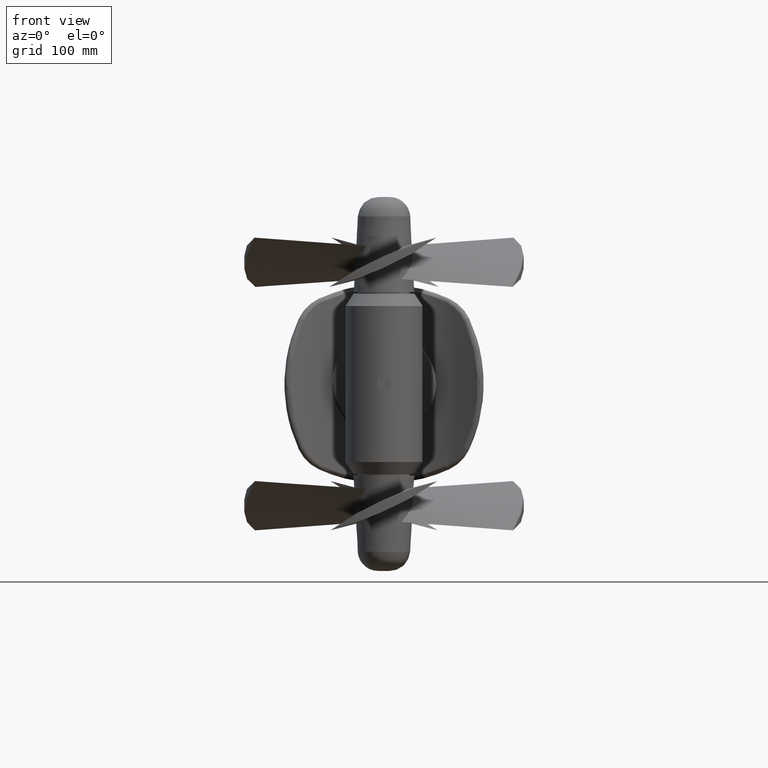
[diagram: clean part render]
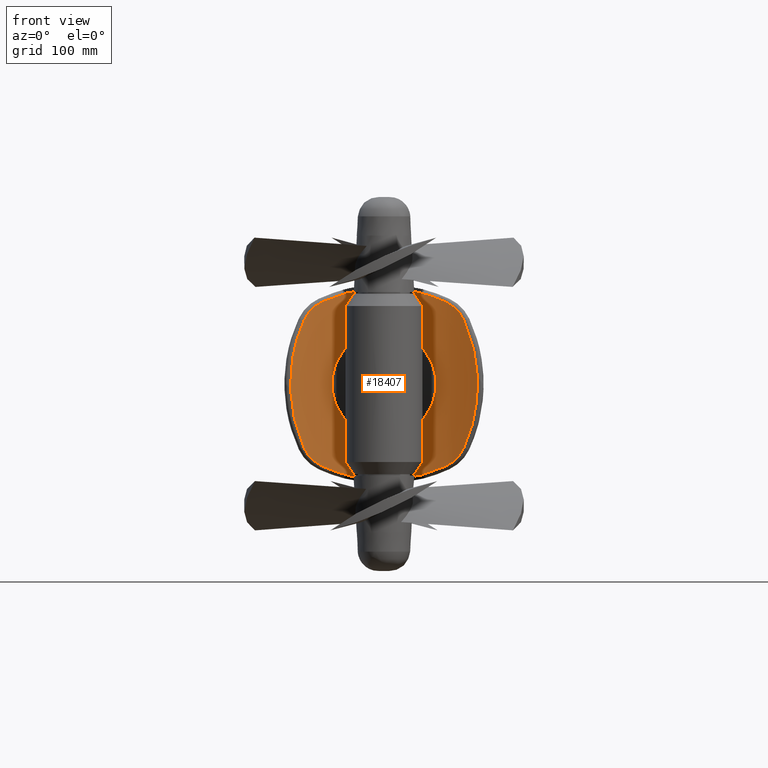
[diagram: same view with one face highlighted and labeled with its STEP entity id]
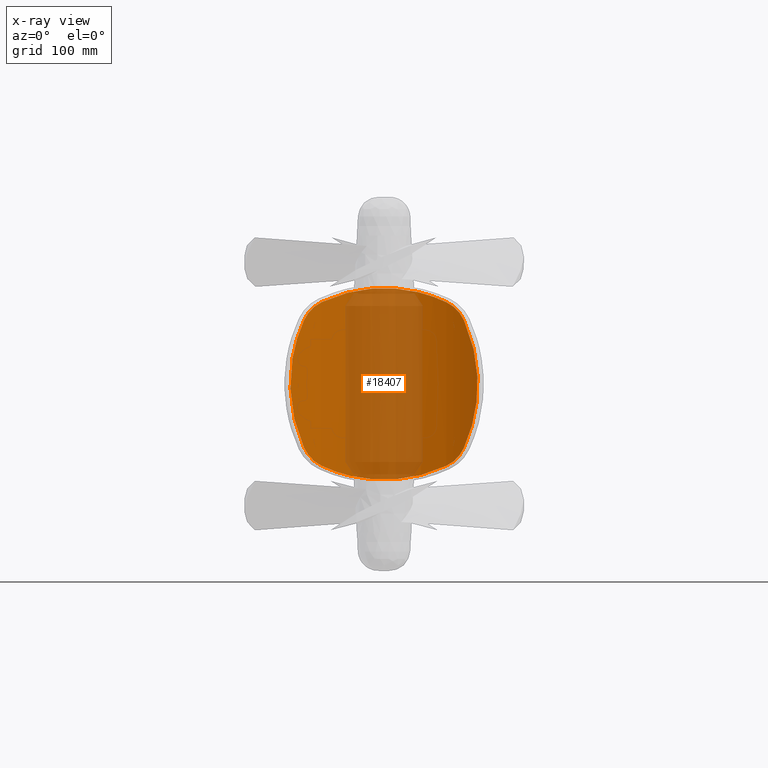
[diagram: x-ray of the same camera — body ghosted, the highlighted face saturated]
A machine part, front view. The second image highlights one B-rep face of the part: STEP entity #18407.
The next image is the same camera in x-ray: the body ghosted, the highlighted face saturated — about 47% of this face is hidden behind the body in this view.
In plain terms, the highlighted cylindrical surface (partial cylindrical patch) has radius 206.5 mm, axis along (0, -0, 1).
Its self-contained STEP definition (entity closure, byte-faithful):
#2166=B_SPLINE_CURVE_WITH_KNOTS('',3,(#30088,#30089,#30090,#30091,#30092,
#30093,#30094,#30095,#30096,#30097,#30098,#30099,#30100,#30101,#30102,#30103,
#30104,#30105,#30106,#30107,#30108,#30109,#30110,#30111,#30112,#30113,#30114,
#30115,#30116,#30117,#30118,#30119,#30120,#30121,#30122,#30123),
 .UNSPECIFIED.,.F.,.F.,(4,2,2,2,2,2,2,2,2,2,2,2,2,2,2,2,2,4),(0.,0.603662661309782,
1.0609597264317,1.21464831998809,1.44587788713886,1.52315733123441,1.67807167282245,
1.75570857815073,1.91140257875688,1.98932729115595,2.14539326794226,2.22353477407441,
2.45786501455923,2.61396319356764,2.92610365629908,3.08225372688954,3.39499632651623,
3.70870922291346),.UNSPECIFIED.);
#2167=B_SPLINE_CURVE_WITH_KNOTS('',3,(#30125,#30126,#30127,#30128,#30129,
#30130,#30131,#30132,#30133,#30134),.UNSPECIFIED.,.F.,.F.,(4,1,1,1,1,1,
1,4),(-17.9370870762451,-15.3746460653529,-12.8122050544608,-10.2497640435687,
-7.68732303267659,-5.12488202178447,-2.56244101089235,-2.30518704763948E-13),
 .UNSPECIFIED.);
#2168=B_SPLINE_CURVE_WITH_KNOTS('',3,(#30136,#30137,#30138,#30139,#30140,
#30141,#30142,#30143,#30144,#30145,#30146,#30147,#30148,#30149,#30150,#30151,
#30152,#30153,#30154,#30155,#30156,#30157,#30158,#30159,#30160,#30161,#30162,
#30163,#30164,#30165,#30166,#30167,#30168,#30169,#30170,#30171),
 .UNSPECIFIED.,.F.,.F.,(4,2,2,2,2,2,2,2,2,2,2,2,2,2,2,2,2,4),(0.,0.625512377243922,
1.09192394194947,1.24718971031609,1.48009173449899,1.55775075006837,1.71314963066655,
1.79088769017084,1.94648940609271,2.02421512577038,2.17940439640732,2.2566886906031,
2.48735715680967,2.64026065313907,2.94438039712936,3.09576986442901,3.39761896700775,
3.6987234704423),.UNSPECIFIED.);
#2169=B_SPLINE_CURVE_WITH_KNOTS('',3,(#30173,#30174,#30175,#30176,#30177,
#30178,#30179,#30180,#30181,#30182,#30183,#30184),.UNSPECIFIED.,.F.,.F.,
(4,1,1,1,1,1,1,1,1,4),(-18.1812499096784,-17.2072543788028,-16.8825892018442,
-15.5839284940101,-11.6879463705075,-10.3892856626734,-5.19464283133669,
-4.5453124774196,-2.59732141566835,-6.20471027840034E-15),.UNSPECIFIED.);
#2170=B_SPLINE_CURVE_WITH_KNOTS('',3,(#30186,#30187,#30188,#30189,#30190,
#30191,#30192,#30193,#30194,#30195,#30196,#30197,#30198,#30199,#30200,#30201,
#30202,#30203,#30204,#30205,#30206,#30207,#30208,#30209,#30210,#30211,#30212,
#30213,#30214,#30215,#30216,#30217,#30218,#30219,#30220,#30221),
 .UNSPECIFIED.,.F.,.F.,(4,2,2,2,2,2,2,2,2,2,2,2,2,2,2,2,2,4),(1.34500587213953E-11,
0.603662661309997,1.06095972643197,1.21464831998835,1.44587788713913,1.5231573312347,
1.67807167282275,1.755708578151,1.91140257875723,1.98932729115628,2.14539326794248,
2.22353477407456,2.45786501455948,2.61396319356785,2.92610365629928,3.08225372688975,
3.39499632651639,3.70870922291365),.UNSPECIFIED.);
#2171=B_SPLINE_CURVE_WITH_KNOTS('',3,(#30223,#30224,#30225,#30226,#30227,
#30228,#30229,#30230,#30231,#30232),.UNSPECIFIED.,.F.,.F.,(4,1,1,1,1,1,
1,4),(-17.9370870762447,-15.3746460653526,-12.8122050544605,-10.2497640435684,
-7.68732303267628,-3.84366151633814,-2.56244101089209,0.),.UNSPECIFIED.);
#2172=B_SPLINE_CURVE_WITH_KNOTS('',3,(#30234,#30235,#30236,#30237,#30238,
#30239,#30240,#30241,#30242,#30243,#30244,#30245,#30246,#30247,#30248,#30249,
#30250,#30251,#30252,#30253,#30254,#30255,#30256,#30257,#30258,#30259,#30260,
#30261,#30262,#30263,#30264,#30265,#30266,#30267,#30268,#30269),
 .UNSPECIFIED.,.F.,.F.,(4,2,2,2,2,2,2,2,2,2,2,2,2,2,2,2,2,4),(0.,0.626455025232919,
1.09474594767155,1.25084417529,1.4851744000125,1.56331590554252,1.71938187780246,
1.79730658668344,1.95300058897335,2.03063749949365,2.18555184900024,2.26283129467349,
2.49406087154938,2.64774941474529,2.95320140760495,3.10504611328769,3.4074459307009,
3.70870921616505),.UNSPECIFIED.);
#2173=B_SPLINE_CURVE_WITH_KNOTS('',3,(#30270,#30271,#30272,#30273,#30274,
#30275,#30276,#30277,#30278,#30279),.UNSPECIFIED.,.F.,.F.,(4,1,1,1,1,1,
1,4),(-18.1812499096783,-15.58392849401,-12.9866070783417,-11.6879463705075,
-7.791964247005,-5.19464283133667,-2.59732141566833,0.),.UNSPECIFIED.);
#3198=CYLINDRICAL_SURFACE('',#19957,206.5);
#3826=FACE_OUTER_BOUND('',#5315,.T.);
#5315=EDGE_LOOP('',(#12845,#12846,#12847,#12848,#12849,#12850,#12851,#12852));
#7780=VERTEX_POINT('',#30086);
#7781=VERTEX_POINT('',#30087);
#7782=VERTEX_POINT('',#30124);
#7783=VERTEX_POINT('',#30135);
#7784=VERTEX_POINT('',#30172);
#7785=VERTEX_POINT('',#30185);
#7786=VERTEX_POINT('',#30222);
#7787=VERTEX_POINT('',#30233);
#9575=EDGE_CURVE('',#7780,#7781,#2166,.T.);
#9576=EDGE_CURVE('',#7782,#7780,#2167,.T.);
#9577=EDGE_CURVE('',#7783,#7782,#2168,.T.);
#9578=EDGE_CURVE('',#7784,#7783,#2169,.T.);
#9579=EDGE_CURVE('',#7785,#7784,#2170,.T.);
#9580=EDGE_CURVE('',#7786,#7785,#2171,.T.);
#9581=EDGE_CURVE('',#7787,#7786,#2172,.T.);
#9582=EDGE_CURVE('',#7781,#7787,#2173,.T.);
#12845=ORIENTED_EDGE('',*,*,#9575,.F.);
#12846=ORIENTED_EDGE('',*,*,#9576,.F.);
#12847=ORIENTED_EDGE('',*,*,#9577,.F.);
#12848=ORIENTED_EDGE('',*,*,#9578,.F.);
#12849=ORIENTED_EDGE('',*,*,#9579,.F.);
#12850=ORIENTED_EDGE('',*,*,#9580,.F.);
#12851=ORIENTED_EDGE('',*,*,#9581,.F.);
#12852=ORIENTED_EDGE('',*,*,#9582,.F.);
#18407=ADVANCED_FACE('',(#3826),#3198,.F.);
#19957=AXIS2_PLACEMENT_3D('',#30085,#22713,#22714);
#22713=DIRECTION('center_axis',(1.66533453693773E-16,-4.8305084843109E-16,
1.));
#22714=DIRECTION('ref_axis',(-1.,5.02815290480203E-16,1.66533453693774E-16));
#30085=CARTESIAN_POINT('Origin',(3.89657678097504,-100.293859772514,-3.22507180430981E-8));
#30086=CARTESIAN_POINT('',(111.386200958436,76.0246891501344,-85.9138809229468));
#30087=CARTESIAN_POINT('',(87.7793966576883,88.4014568877861,-110.092278548157));
#30088=CARTESIAN_POINT('Ctrl Pts',(111.386200958436,76.0246891501343,-85.9138809229468));
#30089=CARTESIAN_POINT('Ctrl Pts',(110.587158351909,76.511811974149,-87.6831473809471));
#30090=CARTESIAN_POINT('Ctrl Pts',(109.689143680183,77.0518206646535,-89.3970158976028));
#30091=CARTESIAN_POINT('Ctrl Pts',(107.957317982095,78.0719538339665,-92.2859224108155));
#30092=CARTESIAN_POINT('Ctrl Pts',(107.16082606315,78.5347784279477,-93.4909261493629));
#30093=CARTESIAN_POINT('Ctrl Pts',(106.03828782707,79.1759888706923,-95.0397170507697));
#30094=CARTESIAN_POINT('Ctrl Pts',(105.750972679265,79.339224756922,-95.4242028825003));
#30095=CARTESIAN_POINT('Ctrl Pts',(105.018005410177,79.7532521769477,-96.3758887419269));
#30096=CARTESIAN_POINT('Ctrl Pts',(104.565996846357,80.0064411093024,-96.9368578016042));
#30097=CARTESIAN_POINT('Ctrl Pts',(103.948068099858,80.349381051107,-97.6703473129328));
#30098=CARTESIAN_POINT('Ctrl Pts',(103.792041040818,80.4357130768524,-97.8528250896674));
#30099=CARTESIAN_POINT('Ctrl Pts',(103.319581863818,80.6963214236875,-98.397267308155));
#30100=CARTESIAN_POINT('Ctrl Pts',(102.999475481203,80.8718165941255,-98.7553814497341));
#30101=CARTESIAN_POINT('Ctrl Pts',(102.511906179193,81.1373976890802,-99.2850455789846));
#30102=CARTESIAN_POINT('Ctrl Pts',(102.347954072329,81.2264189085042,-99.4605474130069));
#30103=CARTESIAN_POINT('Ctrl Pts',(101.851741198643,81.4949669874895,-99.9839516035561));
#30104=CARTESIAN_POINT('Ctrl Pts',(101.516002871459,81.6754958444355,-100.327794246275));
#30105=CARTESIAN_POINT('Ctrl Pts',(101.005601375713,81.9480799867194,-100.835396310501));
#30106=CARTESIAN_POINT('Ctrl Pts',(100.834245961143,82.039286990864,-101.003314622057));
#30107=CARTESIAN_POINT('Ctrl Pts',(100.316462737861,82.313939732382,-101.503308060374));
#30108=CARTESIAN_POINT('Ctrl Pts',(99.9667962554596,82.498159684916,-101.83113492263));
#30109=CARTESIAN_POINT('Ctrl Pts',(99.4358748137952,82.7758878755595,-102.314441836663));
#30110=CARTESIAN_POINT('Ctrl Pts',(99.257753556706,82.8687367173285,-102.47420331544));
#30111=CARTESIAN_POINT('Ctrl Pts',(98.5411122808571,83.2409563390298,-103.107529107303));
#30112=CARTESIAN_POINT('Ctrl Pts',(97.9933564363986,83.5224536940219,-103.5704688656));
#30113=CARTESIAN_POINT('Ctrl Pts',(97.0645611691168,83.9943661277152,-104.320868742849));
#30114=CARTESIAN_POINT('Ctrl Pts',(96.6889066869678,84.1838186633315,-104.615322714014));
#30115=CARTESIAN_POINT('Ctrl Pts',(95.5497102165551,84.7539030064011,-105.481449394976));
#30116=CARTESIAN_POINT('Ctrl Pts',(94.7737916037549,85.1363279286577,-106.035992842631));
#30117=CARTESIAN_POINT('Ctrl Pts',(93.5873087577717,85.7115592656925,-106.832067856417));
#30118=CARTESIAN_POINT('Ctrl Pts',(93.1879442921031,85.903618474172,-107.09153320696));
#30119=CARTESIAN_POINT('Ctrl Pts',(91.9781209193179,86.4805793028193,-107.852327792887));
#30120=CARTESIAN_POINT('Ctrl Pts',(91.1570281115932,86.8657139944917,-108.335255926262));
#30121=CARTESIAN_POINT('Ctrl Pts',(89.4873765762804,87.6351499207562,-109.251749618496));
#30122=CARTESIAN_POINT('Ctrl Pts',(88.6387434141749,88.019441952483,-109.685155427561));
#30123=CARTESIAN_POINT('Ctrl Pts',(87.7793966576886,88.401456887786,-110.092278548157));
#30124=CARTESIAN_POINT('',(111.386200958362,76.0246891501789,85.9138808586075));
#30125=CARTESIAN_POINT('Ctrl Pts',(111.386200958363,76.0246891501788,85.9138808586075));
#30126=CARTESIAN_POINT('Ctrl Pts',(114.77799520976,73.9569390944003,78.403658309263));
#30127=CARTESIAN_POINT('Ctrl Pts',(120.705378133443,70.075177458581,62.89504843149));
#30128=CARTESIAN_POINT('Ctrl Pts',(126.83693906534,65.6529445309429,38.3234726844748));
#30129=CARTESIAN_POINT('Ctrl Pts',(129.975019534756,63.2510540826342,12.9084152806044));
#30130=CARTESIAN_POINT('Ctrl Pts',(129.979401965624,63.2468922180311,-12.8400873707023));
#30131=CARTESIAN_POINT('Ctrl Pts',(126.849144963256,65.6440424036191,-38.2552178725682));
#30132=CARTESIAN_POINT('Ctrl Pts',(120.733860675096,70.055675248336,-62.8083131775623));
#30133=CARTESIAN_POINT('Ctrl Pts',(114.777995209827,73.9569390943571,-78.4036583735969));
#30134=CARTESIAN_POINT('Ctrl Pts',(111.386200958436,76.0246891501338,-85.9138809229449));
#30135=CARTESIAN_POINT('',(87.7793966576888,88.4014568877858,110.092278483656));
#30136=CARTESIAN_POINT('Ctrl Pts',(87.7793966576887,88.4014568877858,110.092278483656));
#30137=CARTESIAN_POINT('Ctrl Pts',(89.4928487940217,87.6397570244122,109.280515390968));
#30138=CARTESIAN_POINT('Ctrl Pts',(91.1663001409306,86.8677457152837,108.362855205633));
#30139=CARTESIAN_POINT('Ctrl Pts',(93.9920631256863,85.5201356823764,106.585865648897));
#30140=CARTESIAN_POINT('Ctrl Pts',(95.1686584291631,84.9445955787257,105.771169872272));
#30141=CARTESIAN_POINT('Ctrl Pts',(96.6887836344474,84.1838800557153,104.615416061525));
#30142=CARTESIAN_POINT('Ctrl Pts',(97.0644422132931,83.9944270928563,104.320966071886));
#30143=CARTESIAN_POINT('Ctrl Pts',(97.9931042933917,83.5225820237178,103.570673129723));
#30144=CARTESIAN_POINT('Ctrl Pts',(98.5408609634378,83.2410870973158,103.107751743503));
#30145=CARTESIAN_POINT('Ctrl Pts',(99.2578278857499,82.8686982734931,102.474138088624));
#30146=CARTESIAN_POINT('Ctrl Pts',(99.4359932411595,82.775826118221,102.314334672293));
#30147=CARTESIAN_POINT('Ctrl Pts',(99.9672456249531,82.4979247186128,101.830726018788));
#30148=CARTESIAN_POINT('Ctrl Pts',(100.316900280957,82.3137077509161,101.502885892456));
#30149=CARTESIAN_POINT('Ctrl Pts',(100.834351090382,82.0392313209335,101.003213344926));
#30150=CARTESIAN_POINT('Ctrl Pts',(101.005704465653,81.9480250216875,100.835294011965));
#30151=CARTESIAN_POINT('Ctrl Pts',(101.516406890261,81.6752801409597,100.327392606457));
#30152=CARTESIAN_POINT('Ctrl Pts',(101.852127213177,81.494758110778,99.9835444451778));
#30153=CARTESIAN_POINT('Ctrl Pts',(102.348043414152,81.2263705872134,99.4604531174035));
#30154=CARTESIAN_POINT('Ctrl Pts',(102.512000714909,81.1373462460237,99.2849430912719));
#30155=CARTESIAN_POINT('Ctrl Pts',(102.999469927651,80.8718194886586,98.7553859346407));
#30156=CARTESIAN_POINT('Ctrl Pts',(103.319219955663,80.696520781399,98.3976815591764));
#30157=CARTESIAN_POINT('Ctrl Pts',(103.791941881683,80.4357678532757,97.8529400238868));
#30158=CARTESIAN_POINT('Ctrl Pts',(103.947963695151,80.3494389500487,97.6704707738028));
#30159=CARTESIAN_POINT('Ctrl Pts',(104.565141936139,80.0069156804769,96.9378733580011));
#30160=CARTESIAN_POINT('Ctrl Pts',(105.017238183433,79.7536854203699,96.3768831492089));
#30161=CARTESIAN_POINT('Ctrl Pts',(105.750675693477,79.3393924849725,95.4245893371336));
#30162=CARTESIAN_POINT('Ctrl Pts',(106.038198948949,79.1760397683521,95.0398421721376));
#30163=CARTESIAN_POINT('Ctrl Pts',(106.882411812313,78.6938115036288,93.8750473863345));
#30164=CARTESIAN_POINT('Ctrl Pts',(107.424069786295,78.380901979414,93.0803514155921));
#30165=CARTESIAN_POINT('Ctrl Pts',(108.202655525892,77.9267385912033,91.863058870645));
#30166=CARTESIAN_POINT('Ctrl Pts',(108.456012013432,77.7781964768498,91.4540255996528));
#30167=CARTESIAN_POINT('Ctrl Pts',(109.197749191101,77.3412769731271,90.216697123226));
#30168=CARTESIAN_POINT('Ctrl Pts',(109.669439392199,77.0606567053356,89.3757346865007));
#30169=CARTESIAN_POINT('Ctrl Pts',(110.564328282204,76.523877779076,87.6655371059273));
#30170=CARTESIAN_POINT('Ctrl Pts',(110.987641725417,76.2676640522724,86.7963838398157));
#30171=CARTESIAN_POINT('Ctrl Pts',(111.386200958383,76.0246891501664,85.9138808585621));
#30172=CARTESIAN_POINT('',(-79.986243095738,88.4014568877861,110.092278483656));
#30173=CARTESIAN_POINT('Ctrl Pts',(-79.986243095738,88.4014568877861,110.092278483656));
#30174=CARTESIAN_POINT('Ctrl Pts',(-77.318198810969,89.587512175874,111.356288043134));
#30175=CARTESIAN_POINT('Ctrl Pts',(-73.6972028271419,91.1074195865432,112.97475298564));
#30176=CARTESIAN_POINT('Ctrl Pts',(-66.2936297264562,93.9627032869051,116.012687883021));
#30177=CARTESIAN_POINT('Ctrl Pts',(-50.1892888159691,99.535669573419,121.934727831182));
#30178=CARTESIAN_POINT('Ctrl Pts',(-29.869852267704,103.988025573172,126.651776639774));
#30179=CARTESIAN_POINT('Ctrl Pts',(3.73509884365397,107.122897261839,129.970227698052));
#30180=CARTESIAN_POINT('Ctrl Pts',(27.2579497152075,105.660989718689,128.424286271407));
#30181=CARTESIAN_POINT('Ctrl Pts',(51.6504336306232,100.743645097957,123.213056054517));
#30182=CARTESIAN_POINT('Ctrl Pts',(67.564019184617,96.5414415536908,118.754954309025));
#30183=CARTESIAN_POINT('Ctrl Pts',(80.6646118983047,91.5642709893536,113.462970642263));
#30184=CARTESIAN_POINT('Ctrl Pts',(87.7793966576888,88.4014568877858,110.092278483656));
#30185=CARTESIAN_POINT('',(-103.593047396412,76.0246891501789,85.9138808586075));
#30186=CARTESIAN_POINT('Ctrl Pts',(-103.593047396433,76.0246891501665,85.9138808585621));
#30187=CARTESIAN_POINT('Ctrl Pts',(-102.79400478992,76.5118119741721,87.6831473165187));
#30188=CARTESIAN_POINT('Ctrl Pts',(-101.895990338582,77.0518205379161,89.3970158725891));
#30189=CARTESIAN_POINT('Ctrl Pts',(-100.164164534608,78.0719537725929,92.2859223170001));
#30190=CARTESIAN_POINT('Ctrl Pts',(-99.3676725917167,78.534778379287,93.490926074851));
#30191=CARTESIAN_POINT('Ctrl Pts',(-98.24513429595,79.1759888525509,95.0397169863269));
#30192=CARTESIAN_POINT('Ctrl Pts',(-97.9578191493984,79.3392247382044,95.424202817363));
#30193=CARTESIAN_POINT('Ctrl Pts',(-97.2248518653998,79.7532521663283,96.3758886836322));
#30194=CARTESIAN_POINT('Ctrl Pts',(-96.7728432913099,80.0064411043257,96.9368577447883));
#30195=CARTESIAN_POINT('Ctrl Pts',(-96.1549145392352,80.3493810491955,97.6703472585024));
#30196=CARTESIAN_POINT('Ctrl Pts',(-95.9988874800412,80.4357130750314,97.8528250351366));
#30197=CARTESIAN_POINT('Ctrl Pts',(-95.5264283012178,80.6963214229108,98.3972672539078));
#30198=CARTESIAN_POINT('Ctrl Pts',(-95.2063219163981,80.8718165946484,98.75538139533));
#30199=CARTESIAN_POINT('Ctrl Pts',(-94.7187526134251,81.1373976901823,99.2850455243632));
#30200=CARTESIAN_POINT('Ctrl Pts',(-94.5548005063809,81.2264189097196,99.4605473583463));
#30201=CARTESIAN_POINT('Ctrl Pts',(-94.0585876319209,81.4949669892017,99.9839515484781));
#30202=CARTESIAN_POINT('Ctrl Pts',(-93.7228493038241,81.6754958467774,100.327794190942));
#30203=CARTESIAN_POINT('Ctrl Pts',(-93.2124478076953,81.9480799893369,100.835396255444));
#30204=CARTESIAN_POINT('Ctrl Pts',(-93.0410923930051,82.0392869935658,101.003314567029));
#30205=CARTESIAN_POINT('Ctrl Pts',(-92.5233091688438,82.313939735645,101.503308005998));
#30206=CARTESIAN_POINT('Ctrl Pts',(-92.173642685147,82.4981596890399,101.831134869256));
#30207=CARTESIAN_POINT('Ctrl Pts',(-91.642721242177,82.7758878804763,102.31444178446));
#30208=CARTESIAN_POINT('Ctrl Pts',(-91.4645999848745,82.8687367223691,102.474203263414));
#30209=CARTESIAN_POINT('Ctrl Pts',(-90.747958705639,83.2409563461348,103.107529058608));
#30210=CARTESIAN_POINT('Ctrl Pts',(-90.200202856954,83.522453703863,103.570468821061));
#30211=CARTESIAN_POINT('Ctrl Pts',(-89.2714075900371,83.9943661377255,104.320868698299));
#30212=CARTESIAN_POINT('Ctrl Pts',(-88.895753107711,84.1838186735509,104.615322669698));
#30213=CARTESIAN_POINT('Ctrl Pts',(-87.7565566394921,84.7539030166081,105.481449350671));
#30214=CARTESIAN_POINT('Ctrl Pts',(-86.9806380299755,85.1363279379795,106.035992796186));
#30215=CARTESIAN_POINT('Ctrl Pts',(-85.7941551852602,85.7115592742293,106.832067807938));
#30216=CARTESIAN_POINT('Ctrl Pts',(-85.3947907200265,85.9036184825375,107.091533158129));
#30217=CARTESIAN_POINT('Ctrl Pts',(-84.1849673496393,86.4805793110557,107.852327743658));
#30218=CARTESIAN_POINT('Ctrl Pts',(-83.3638745450122,86.8657140010798,108.335255873844));
#30219=CARTESIAN_POINT('Ctrl Pts',(-81.6942230120462,87.6351499259405,109.251749563103));
#30220=CARTESIAN_POINT('Ctrl Pts',(-80.8455898522229,88.0194419524837,109.68515536306));
#30221=CARTESIAN_POINT('Ctrl Pts',(-79.9862430957384,88.401456887786,110.092278483656));
#30222=CARTESIAN_POINT('',(-103.593047396485,76.0246891501344,-85.9138809229467));
#30223=CARTESIAN_POINT('Ctrl Pts',(-103.593047396487,76.0246891501335,-85.9138809229434));
#30224=CARTESIAN_POINT('Ctrl Pts',(-106.984841647878,73.9569390943568,-78.4036583735954));
#30225=CARTESIAN_POINT('Ctrl Pts',(-112.940087066524,70.0567777927429,-62.807149383785));
#30226=CARTESIAN_POINT('Ctrl Pts',(-119.057402632904,65.6416611283883,-38.2568119609595));
#30227=CARTESIAN_POINT('Ctrl Pts',(-122.184608295271,63.2503840806588,-12.8313018493071));
#30228=CARTESIAN_POINT('Ctrl Pts',(-122.185277643493,63.2436717996775,17.1870887018309));
#30229=CARTESIAN_POINT('Ctrl Pts',(-118.253487238019,66.266927660016,42.5383092821124));
#30230=CARTESIAN_POINT('Ctrl Pts',(-111.429970104922,71.0484311981439,66.7651763121584));
#30231=CARTESIAN_POINT('Ctrl Pts',(-106.984841647809,73.9569390944004,78.4036583092631));
#30232=CARTESIAN_POINT('Ctrl Pts',(-103.593047396412,76.024689150179,85.9138808586075));
#30233=CARTESIAN_POINT('',(-79.986243095738,88.4014568877862,-110.092278548157));
#30234=CARTESIAN_POINT('Ctrl Pts',(-79.9862430957386,88.401456887786,-110.092278548157));
#30235=CARTESIAN_POINT('Ctrl Pts',(-81.7022774067322,87.6386091416998,-109.279292127403));
#30236=CARTESIAN_POINT('Ctrl Pts',(-83.3755356867533,86.866605921425,-108.361352861971));
#30237=CARTESIAN_POINT('Ctrl Pts',(-86.2001664944475,85.5195361686913,-106.585074604129));
#30238=CARTESIAN_POINT('Ctrl Pts',(-87.3766554613276,84.9440194603255,-105.770294476453));
#30239=CARTESIAN_POINT('Ctrl Pts',(-88.895752716909,84.1838186471928,-104.615322531325));
#30240=CARTESIAN_POINT('Ctrl Pts',(-89.2714079474699,83.9943664015967,-104.320869370577));
#30241=CARTESIAN_POINT('Ctrl Pts',(-90.2002029893527,83.5224538022345,-103.570469135868));
#30242=CARTESIAN_POINT('Ctrl Pts',(-90.7479587133092,83.2409565103377,-103.107529455392));
#30243=CARTESIAN_POINT('Ctrl Pts',(-91.4645998812603,82.8687368954305,-102.474203645891));
#30244=CARTESIAN_POINT('Ctrl Pts',(-91.6427211247659,82.7758880610045,-102.314442180793));
#30245=CARTESIAN_POINT('Ctrl Pts',(-92.1736425073884,82.4981598838522,-101.83113528068));
#30246=CARTESIAN_POINT('Ctrl Pts',(-92.5233089028041,82.3139399509338,-101.503308429722));
#30247=CARTESIAN_POINT('Ctrl Pts',(-93.0410920640727,82.0392872293438,-101.003315018012));
#30248=CARTESIAN_POINT('Ctrl Pts',(-93.2124474600602,81.9480802323934,-100.835396718008));
#30249=CARTESIAN_POINT('Ctrl Pts',(-93.722848906981,81.675496105027,-100.327794670787));
#30250=CARTESIAN_POINT('Ctrl Pts',(-94.0585871558649,81.4949672696616,-99.9839520398987));
#30251=CARTESIAN_POINT('Ctrl Pts',(-94.5547999968831,81.2264191980842,-99.4605478500931));
#30252=CARTESIAN_POINT('Ctrl Pts',(-94.7187521030268,81.1373979767453,-99.2850460091793));
#30253=CARTESIAN_POINT('Ctrl Pts',(-95.206321379065,80.8718168856979,-98.7553818685342));
#30254=CARTESIAN_POINT('Ctrl Pts',(-95.5264276721263,80.6963217444671,-98.3972677388935));
#30255=CARTESIAN_POINT('Ctrl Pts',(-95.9988868013169,80.4357134121104,-97.8528255191202));
#30256=CARTESIAN_POINT('Ctrl Pts',(-96.1549138596197,80.3493813859457,-97.6703477474781));
#30257=CARTESIAN_POINT('Ctrl Pts',(-96.7728424636877,80.0064414960528,-96.936858227499));
#30258=CARTESIAN_POINT('Ctrl Pts',(-97.2248508674626,79.7532526245662,-96.3758894006624));
#30259=CARTESIAN_POINT('Ctrl Pts',(-97.957817379629,79.3392255134896,-95.4242034261854));
#30260=CARTESIAN_POINT('Ctrl Pts',(-98.2451337531773,79.1759891551081,-95.039718890356));
#30261=CARTESIAN_POINT('Ctrl Pts',(-99.0886869332556,78.6941379991654,-93.8758367053074));
#30262=CARTESIAN_POINT('Ctrl Pts',(-99.6304309170799,78.3811851502762,-93.0811106016305));
#30263=CARTESIAN_POINT('Ctrl Pts',(-100.40938860072,77.926804693376,-91.8632358328969));
#30264=CARTESIAN_POINT('Ctrl Pts',(-100.662753770936,77.7782581212931,-91.4541999464524));
#30265=CARTESIAN_POINT('Ctrl Pts',(-101.404219530878,77.3414985635824,-90.2173247634968));
#30266=CARTESIAN_POINT('Ctrl Pts',(-101.875968795838,77.0608468943922,-89.376340453225));
#30267=CARTESIAN_POINT('Ctrl Pts',(-102.77091134863,76.5240357634615,-87.6660406673126));
#30268=CARTESIAN_POINT('Ctrl Pts',(-103.194277990497,76.2677921806723,-86.7968492762338));
#30269=CARTESIAN_POINT('Ctrl Pts',(-103.593047396485,76.0246891501345,-85.9138809229468));
#30270=CARTESIAN_POINT('Ctrl Pts',(87.7793966576882,88.4014568877861,-110.092278548157));
#30271=CARTESIAN_POINT('Ctrl Pts',(80.6646118983041,91.5642709893539,-113.462970706764));
#30272=CARTESIAN_POINT('Ctrl Pts',(65.6805916185082,97.253125997789,-119.511715270655));
#30273=CARTESIAN_POINT('Ctrl Pts',(45.6520965658894,102.239729505695,-124.799372506844));
#30274=CARTESIAN_POINT('Ctrl Pts',(20.8459300640757,106.06879977877,-128.855139904095));
#30275=CARTESIAN_POINT('Ctrl Pts',(-4.73506940478492,106.858519683095,-129.690406474691));
#30276=CARTESIAN_POINT('Ctrl Pts',(-34.0118653026193,103.207487167888,-125.82553568769));
#30277=CARTESIAN_POINT('Ctrl Pts',(-57.9632294523054,97.2244358335881,-119.481222110575));
#30278=CARTESIAN_POINT('Ctrl Pts',(-72.8714583363541,91.5642709893539,-113.462970706764));
#30279=CARTESIAN_POINT('Ctrl Pts',(-79.986243095738,88.4014568877862,-110.092278548157));